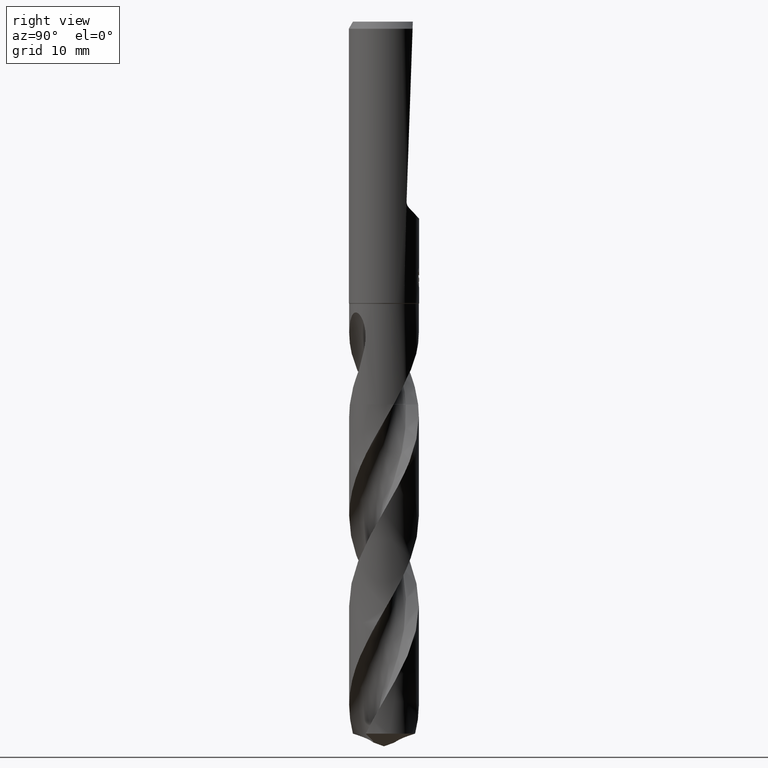
[diagram: clean part render]
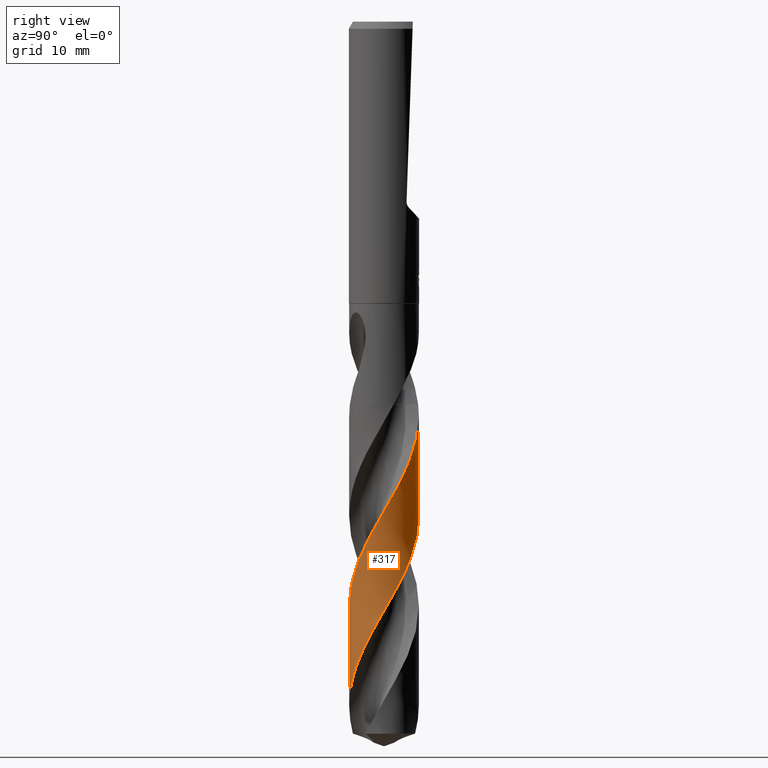
[diagram: same view with one face highlighted and labeled with its STEP entity id]
A machine part, right view. The second image highlights one B-rep face of the part: STEP entity #317.
In plain terms, the highlighted conical surface has half-angle 0 deg.
Its self-contained STEP definition (entity closure, byte-faithful):
#317=ADVANCED_FACE('',(#891),#892,.T.);
#319=VERTEX_POINT('',#894);
#381=EDGE_CURVE('',#573,#413,#959,.T.);
#413=VERTEX_POINT('',#991);
#481=EDGE_CURVE('',#679,#413,#1063,.T.);
#501=EDGE_CURVE('',#679,#319,#1085,.T.);
#573=VERTEX_POINT('',#1165);
#679=VERTEX_POINT('',#1283);
#745=EDGE_CURVE('',#573,#319,#1355,.T.);
#891=FACE_OUTER_BOUND('',#2343,.T.);
#892=CONICAL_SURFACE('',#2344,4.94995,2.13682759504895E-006);
#894=CARTESIAN_POINT('',(8.13646197697888E-012,-4.949961128675,-83.0072096497255));
#959=LINE('',#2707,#2708);
#991=CARTESIAN_POINT('',(-2.29511601057751E-014,4.94993392590851,-70.2767645025842));
#1063=B_SPLINE_CURVE_WITH_KNOTS('',3,(#4342,#4343,#4344,#4345,#4346,#4347,#4348,#4349,#4350,#4351,#4352,#4353,#4354,#4355,#4356,#4357,#4358,#4359,#4360,#4361,#4362,#4363,#4364,#4365,#4366,#4367,#4368,#4369,#4370,#4371,#4372,#4373,#4374,#4375,#4376,#4377,#4378,#4379,#4380,#4381,#4382,#4383,#4384,#4385,#4386,#4387,#4388,#4389,#4390,#4391,#4392,#4393,#4394,#4395,#4396,#4397,#4398,#4399,#4400,#4401,#4402,#4403,#4404,#4405,#4406,#4407,#4408,#4409),.UNSPECIFIED.,.F.,.F.,(4,2,2,2,2,2,2,2,2,2,2,2,2,2,2,2,2,2,2,2,2,2,2,2,2,2,2,2,2,2,2,2,2,4),(0.0,2.95396944110881,5.28989457424322,5.94457461234737,7.85927152541722,10.3076145911733,13.3820180529097,13.4342824440581,16.8709089554857,17.5327680101745,20.463874669371,21.5228505686648,23.4461732904978,24.3942358476511,25.4818067649035,27.3189469209078,30.2260025828636,31.540748809011,33.8656376018781,36.479405420745,36.9352157420846,39.8818853183741,41.1502282296475,43.4246927602005,46.1318109732281,48.1775151104775,48.5595118764898,49.9977214088226,50.5367277501817,51.4810402510671,52.8975913003521,53.6051296029751,53.9582888289968,54.3120357394263),.UNSPECIFIED.);
#1085=LINE('',#4510,#4511);
#1165=CARTESIAN_POINT('',(-4.77698509136069E-013,4.94990361134647,-56.0900504681724));
#1283=CARTESIAN_POINT('',(-3.43353931960499E-014,-4.94999144659621,-97.1954957260998));
#1355=B_SPLINE_CURVE_WITH_KNOTS('',3,(#7389,#7390,#7391,#7392,#7393,#7394,#7395,#7396,#7397,#7398,#7399,#7400,#7401,#7402,#7403,#7404,#7405,#7406,#7407,#7408,#7409,#7410,#7411,#7412,#7413,#7414,#7415,#7416,#7417,#7418,#7419,#7420,#7421,#7422,#7423,#7424,#7425,#7426,#7427,#7428,#7429,#7430,#7431,#7432,#7433,#7434,#7435,#7436,#7437,#7438,#7439,#7440,#7441,#7442,#7443,#7444,#7445,#7446),.UNSPECIFIED.,.F.,.F.,(4,2,2,2,2,2,2,2,2,2,2,2,2,2,2,2,2,2,2,2,2,2,2,2,2,2,2,2,4),(0.0,0.471830024870291,5.37697621048738,6.33167472662314,9.36972604740136,10.0910892843186,12.6199298902539,14.5249329743223,16.423769062485,18.3316915458444,20.2280767722324,22.1395679275063,23.9490003149199,25.8676599423328,29.0660161791141,29.1914357035232,31.1917215826455,32.1543154913817,34.0405071876441,35.9442927356464,37.8364453001447,39.7379676731935,41.5100212833283,43.064821643279,45.8172123242273,47.8737062211974,49.4122721769235,51.7388134704482,54.0760218006654),.UNSPECIFIED.);
#2343=EDGE_LOOP('',(#9071,#9072,#9073,#9074));
#2344=AXIS2_PLACEMENT_3D('',#9075,#9076,#9077);
#2707=CARTESIAN_POINT('',(-6.05222775287203E-016,4.94995,-77.7991736701912));
#2708=VECTOR('',#9138,1.0);
#4342=CARTESIAN_POINT('',(-2.22935091695266,-4.4195581780402,-101.198347340382));
#4343=CARTESIAN_POINT('',(-1.79165276769674,-4.64034353681386,-100.344402061209));
#4344=CARTESIAN_POINT('',(-1.32142423303132,-4.79588171073864,-99.4939432099212));
#4345=CARTESIAN_POINT('',(-0.449181932684798,-4.9450337474409,-97.9670830996688));
#4346=CARTESIAN_POINT('',(-0.0584864454376092,-4.96489824825402,-97.299645748127));
#4347=CARTESIAN_POINT('',(0.438262577509836,-4.9317545706241,-96.4351454277494));
#4348=CARTESIAN_POINT('',(0.546446478820447,-4.92093583471272,-96.2455297629822));
#4349=CARTESIAN_POINT('',(0.969353037893978,-4.86454717076001,-95.5036312141426));
#4350=CARTESIAN_POINT('',(1.28047632889718,-4.79216934963184,-94.9547379271962));
#4351=CARTESIAN_POINT('',(1.97047428458111,-4.55923015477065,-93.6975812111948));
#4352=CARTESIAN_POINT('',(2.33957269064366,-4.38118568037121,-92.9899088817627));
#4353=CARTESIAN_POINT('',(3.11215839226151,-3.88311855390258,-91.3981122339455));
#4354=CARTESIAN_POINT('',(3.49577147671498,-3.54138735878977,-90.5272195620004));
#4355=CARTESIAN_POINT('',(3.82531167549935,-3.1415475124881,-89.6251349228411));
#4356=CARTESIAN_POINT('',(3.83080457268415,-3.13484719159557,-89.6100486458373));
#4357=CARTESIAN_POINT('',(4.19791995735567,-2.68461357814803,-88.5988248074707));
#4358=CARTESIAN_POINT('',(4.48002890560143,-2.18172705725621,-87.6248687968382));
#4359=CARTESIAN_POINT('',(4.70660017340653,-1.53697183887258,-86.4392516618976));
#4360=CARTESIAN_POINT('',(4.73961951774328,-1.43188523666867,-86.2474008241071));
#4361=CARTESIAN_POINT('',(4.89959865913834,-0.856445804671472,-85.2094989622824));
#4362=CARTESIAN_POINT('',(4.96020006143069,-0.37001454730818,-84.3765665062017));
#4363=CARTESIAN_POINT('',(4.9443466395271,0.294394288622303,-83.2258191989968));
#4364=CARTESIAN_POINT('',(4.93072696755743,0.469999178536565,-82.9193049502784));
#4365=CARTESIAN_POINT('',(4.86635050309687,0.960471052574037,-82.0602955893343));
#4366=CARTESIAN_POINT('',(4.79427688073582,1.27265509998457,-81.5102929838343));
#4367=CARTESIAN_POINT('',(4.64194190193651,1.72608959460042,-80.6847189939374));
#4368=CARTESIAN_POINT('',(4.58457502122413,1.87311057331992,-80.4125067500395));
#4369=CARTESIAN_POINT('',(4.4467639630378,2.18196892708571,-79.8267027933623));
#4370=CARTESIAN_POINT('',(4.36432478289759,2.34247226350076,-79.5125608262318));
#4371=CARTESIAN_POINT('',(4.11979161614844,2.76079337228834,-78.6715804136077));
#4372=CARTESIAN_POINT('',(3.94200574142779,3.00931552075771,-78.1468010220629));
#4373=CARTESIAN_POINT('',(3.42543641633327,3.60585327882352,-76.7848679728131));
#4374=CARTESIAN_POINT('',(3.05737093804333,3.92274146012613,-75.9470134252313));
#4375=CARTESIAN_POINT('',(2.46463862140751,4.29828416317934,-74.7344549093915));
#4376=CARTESIAN_POINT('',(2.27248214820728,4.40290146540469,-74.3581074292385));
#4377=CARTESIAN_POINT('',(1.72301803209136,4.6564511889217,-73.3129603342535));
#4378=CARTESIAN_POINT('',(1.35478063825027,4.77655625885797,-72.6418275619969));
#4379=CARTESIAN_POINT('',(0.550849112854352,4.93829832991235,-71.2234035394332));
#4380=CARTESIAN_POINT('',(0.116707536700317,4.96741252167313,-70.4820687420746));
#4381=CARTESIAN_POINT('',(-0.390053340689426,4.93511656924002,-69.5996065877379));
#4382=CARTESIAN_POINT('',(-0.465052952841175,4.92861483601055,-69.4684555240162));
#4383=CARTESIAN_POINT('',(-1.02475251245293,4.86718339106055,-68.4899100366377));
#4384=CARTESIAN_POINT('',(-1.49929180989636,4.74264605626818,-67.6562354152189));
#4385=CARTESIAN_POINT('',(-2.14183702507023,4.46749793248361,-66.4460174232056));
#4386=CARTESIAN_POINT('',(-2.3293294242589,4.37264689041839,-66.0802957182945));
#4387=CARTESIAN_POINT('',(-2.83465495361677,4.07530998145247,-65.0635303896029));
#4388=CARTESIAN_POINT('',(-3.13651378636396,3.84789079225064,-64.4172705012243));
#4389=CARTESIAN_POINT('',(-3.73532542969799,3.27880554298764,-62.9892278197278));
#4390=CARTESIAN_POINT('',(-4.01717565491629,2.92677067046014,-62.2094111391407));
#4391=CARTESIAN_POINT('',(-4.42226080685315,2.24958078154198,-60.8473035730422));
#4392=CARTESIAN_POINT('',(-4.56580268559235,1.94152010784744,-60.2653811398848));
#4393=CARTESIAN_POINT('',(-4.69733578345308,1.56225656016275,-59.5687227459253));
#4394=CARTESIAN_POINT('',(-4.71686011556016,1.50227550174337,-59.4590351412436));
#4395=CARTESIAN_POINT('',(-4.80446965209793,1.21455787608548,-58.9368279561098));
#4396=CARTESIAN_POINT('',(-4.85729981030446,0.982314435496317,-58.5258559720658));
#4397=CARTESIAN_POINT('',(-4.90669753615402,0.658687571017366,-57.9590671701964));
#4398=CARTESIAN_POINT('',(-4.9177745138221,0.570124717454307,-57.8044596094333));
#4399=CARTESIAN_POINT('',(-4.9416562671222,0.325664991465328,-57.3792630343069));
#4400=CARTESIAN_POINT('',(-4.94948375705588,0.169334493460146,-57.1089844062348));
#4401=CARTESIAN_POINT('',(-4.95049590859427,-0.221960310053079,-56.4324637925119));
#4402=CARTESIAN_POINT('',(-4.93439486134423,-0.456412517069067,-56.0266527104689));
#4403=CARTESIAN_POINT('',(-4.8854569538116,-0.804716365903502,-55.4179336481504));
#4404=CARTESIAN_POINT('',(-4.86505864732971,-0.92000021369965,-55.215343968869));
#4405=CARTESIAN_POINT('',(-4.82843364278489,-1.09140038565571,-54.9111583583929));
#4406=CARTESIAN_POINT('',(-4.81524385622845,-1.14818835356132,-54.809876089646));
#4407=CARTESIAN_POINT('',(-4.78687465635019,-1.26124855559345,-54.6070097395443));
#4408=CARTESIAN_POINT('',(-4.77178021687419,-1.31719211920776,-54.5058689259694));
#4409=CARTESIAN_POINT('',(-4.7556798869759,-1.37295991334815,-54.4047767455374));
#4510=CARTESIAN_POINT('',(6.07125268933412E-016,-4.94995,-77.7991736701912));
#4511=VECTOR('',#9243,1.0);
#7389=CARTESIAN_POINT('',(-0.967693718980683,4.8543875977973,-54.4034698992135));
#7390=CARTESIAN_POINT('',(-0.890521857389156,4.86977165285677,-54.5396454737997));
#7391=CARTESIAN_POINT('',(-0.813022401764986,4.88330759424958,-54.6758688584026));
#7392=CARTESIAN_POINT('',(0.0731013763548195,5.01641358870921,-56.2280105614193));
#7393=CARTESIAN_POINT('',(0.899443406654452,4.9357662009484,-57.6219430898445));
#7394=CARTESIAN_POINT('',(1.81944762820888,4.60614534780597,-59.3130356497665));
#7395=CARTESIAN_POINT('',(1.96660360097477,4.54526255569411,-59.5882078222602));
#7396=CARTESIAN_POINT('',(2.56858425135901,4.26150653133135,-60.7408122201753));
#7397=CARTESIAN_POINT('',(2.99111423947087,3.97642188980315,-61.613406724512));
#7398=CARTESIAN_POINT('',(3.45143919733126,3.55017524779599,-62.6983197201717));
#7399=CARTESIAN_POINT('',(3.53671371254619,3.46522977035799,-62.9063113372976));
#7400=CARTESIAN_POINT('',(3.90652606829732,3.06897525274484,-63.8446422584266));
#7401=CARTESIAN_POINT('',(4.15381980130456,2.72499705942811,-64.5732656748247));
#7402=CARTESIAN_POINT('',(4.50566958290491,2.07406922113138,-65.853293281488));
#7403=CARTESIAN_POINT('',(4.62946609416006,1.78063910118775,-66.4013299332275));
#7404=CARTESIAN_POINT('',(4.81876288033203,1.17538396002783,-67.4999413329007));
#7405=CARTESIAN_POINT('',(4.88410712823062,0.864711556584493,-68.0473604006994));
#7406=CARTESIAN_POINT('',(4.95467257834578,0.233312816704229,-69.1464676936432));
#7407=CARTESIAN_POINT('',(4.95940475702793,-0.0856408035688894,-69.6953336431081));
#7408=CARTESIAN_POINT('',(4.90780354175445,-0.717842154836708,-70.7941935279654));
#7409=CARTESIAN_POINT('',(4.85192979570399,-1.02996600805463,-71.3410249035415));
#7410=CARTESIAN_POINT('',(4.68055213362468,-1.64198359534854,-72.4405877972815));
#7411=CARTESIAN_POINT('',(4.56507000747351,-1.94001175074537,-72.990438468437));
#7412=CARTESIAN_POINT('',(4.28618887209219,-2.49430493657609,-74.0653176710405));
#7413=CARTESIAN_POINT('',(4.12614542383073,-2.75101267963431,-74.5872932224951));
#7414=CARTESIAN_POINT('',(3.75007467480491,-3.24676049942791,-75.6639819036374));
#7415=CARTESIAN_POINT('',(3.53231403639764,-3.48240462054326,-76.2158006243053));
#7416=CARTESIAN_POINT('',(2.89515609152771,-4.05026656435963,-77.6940951294267));
#7417=CARTESIAN_POINT('',(2.44187508257227,-4.33871645466996,-78.6121936932441));
#7418=CARTESIAN_POINT('',(1.93183045519467,-4.55746773384483,-79.572094591292));
#7419=CARTESIAN_POINT('',(1.91253513117893,-4.5655986632474,-79.6083101739255));
#7420=CARTESIAN_POINT('',(1.58460308042744,-4.70134337901714,-80.2223432295159));
#7421=CARTESIAN_POINT('',(1.2639497017836,-4.79749559998523,-80.7999732820629));
#7422=CARTESIAN_POINT('',(0.778346775890403,-4.89101992194696,-81.6561213512516));
#7423=CARTESIAN_POINT('',(0.619141721332082,-4.91371604159111,-81.9340342653018));
#7424=CARTESIAN_POINT('',(0.145373946821146,-4.95784502405188,-82.7570144454393));
#7425=CARTESIAN_POINT('',(-0.170189251165281,-4.95703217560484,-83.3004392359163));
#7426=CARTESIAN_POINT('',(-0.799423347458539,-4.89529708612494,-84.3958216387234));
#7427=CARTESIAN_POINT('',(-1.11197761407352,-4.83391923731825,-84.9448484245989));
#7428=CARTESIAN_POINT('',(-1.71948095798408,-4.65246664926272,-86.0415181220271));
#7429=CARTESIAN_POINT('',(-2.01276381267828,-4.5332797584511,-86.5865544765734));
#7430=CARTESIAN_POINT('',(-2.57371086480666,-4.24014958509715,-87.6830615643437));
#7431=CARTESIAN_POINT('',(-2.84027164416855,-4.06644378820728,-88.2315246038419));
#7432=CARTESIAN_POINT('',(-3.3197956871384,-3.68358755527901,-89.2929162424132));
#7433=CARTESIAN_POINT('',(-3.5339370925998,-3.47864492950366,-89.8033111748133));
#7434=CARTESIAN_POINT('',(-3.89906456376644,-3.06053520747916,-90.7649754540075));
#7435=CARTESIAN_POINT('',(-4.05414652243153,-2.85194411385464,-91.2139855826129));
#7436=CARTESIAN_POINT('',(-4.43657305663157,-2.24284507559603,-92.4587747761907));
#7437=CARTESIAN_POINT('',(-4.62549320250807,-1.82157172607792,-93.2493420572373));
#7438=CARTESIAN_POINT('',(-4.84930504456789,-1.05089605522699,-94.6393800130807));
#7439=CARTESIAN_POINT('',(-4.91053957916618,-0.712065696752969,-95.231945493538));
#7440=CARTESIAN_POINT('',(-4.95537016989631,-0.113072131510627,-96.2706673218063));
#7441=CARTESIAN_POINT('',(-4.95454155581346,0.144149700165289,-96.7145040212544));
#7442=CARTESIAN_POINT('',(-4.9024570706905,0.786720733636134,-97.8319686798628));
#7443=CARTESIAN_POINT('',(-4.82570202917164,1.16882447230295,-98.502568880069));
#7444=CARTESIAN_POINT('',(-4.58354334676286,1.90947595766407,-99.8502067802905));
#7445=CARTESIAN_POINT('',(-4.41870295740018,2.26494414338967,-100.522916145618));
#7446=CARTESIAN_POINT('',(-4.21385213440391,2.59729670799847,-101.198347340382));
#9071=ORIENTED_EDGE('',*,*,#381,.F.);
#9072=ORIENTED_EDGE('',*,*,#745,.T.);
#9073=ORIENTED_EDGE('',*,*,#501,.F.);
#9074=ORIENTED_EDGE('',*,*,#481,.T.);
#9075=CARTESIAN_POINT('',(0.0,0.0,-77.7991736701912));
#9076=DIRECTION('',(0.0,-0.0,-1.0));
#9077=DIRECTION('',(0.0,1.0,0.0));
#9138=DIRECTION('',(-2.61677264991795E-022,2.13682759504733E-006,-0.999999999997717));
#9243=DIRECTION('',(-2.61677264991795E-022,2.13682759504733E-006,0.999999999997717));